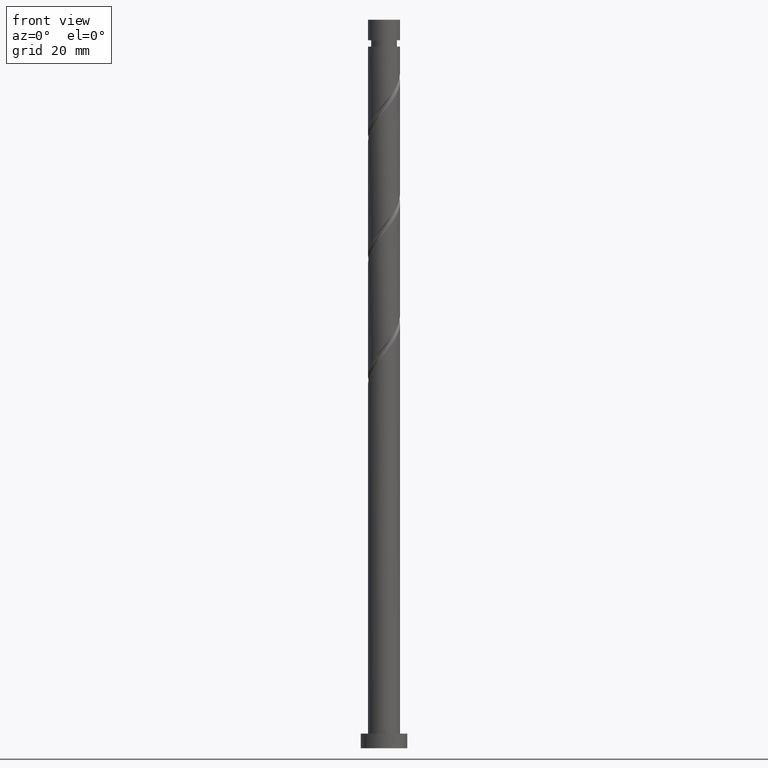
[diagram: clean part render]
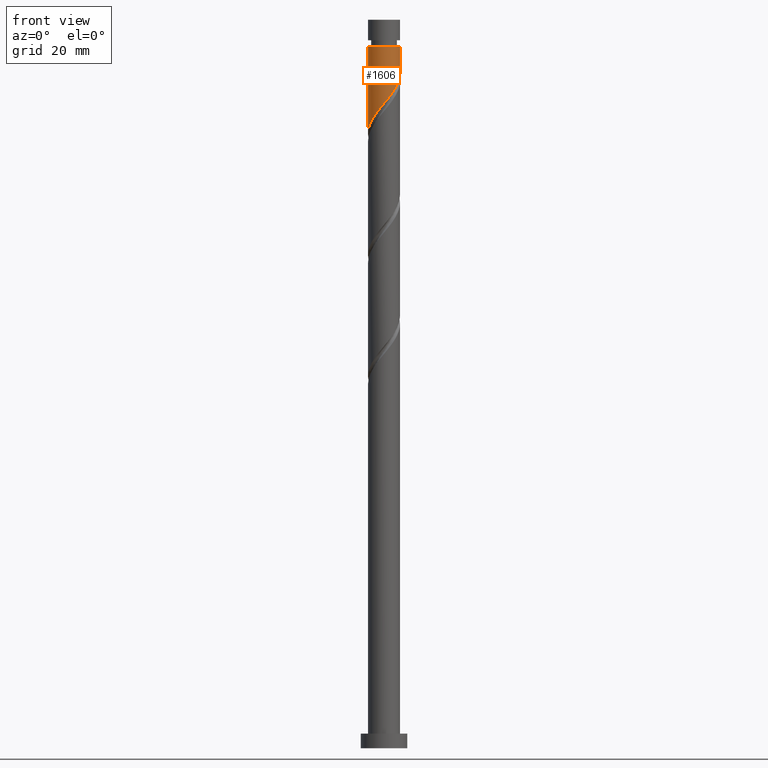
[diagram: same view with one face highlighted and labeled with its STEP entity id]
A machine part, front view. The second image highlights one B-rep face of the part: STEP entity #1606.
In plain terms, the highlighted cylindrical surface (edge-blend (fillet) strip) has radius 5.5 mm, axis along (-0, -0, -1).
Its self-contained STEP definition (entity closure, byte-faithful):
#1 = DIRECTION ( 'NONE',  ( -0.000000000000000000, -0.000000000000000000, -1.000000000000000000 ) ) ;
#22 = CARTESIAN_POINT ( 'NONE',  ( -5.499999999999982236, 0.000000000000000000, 240.7912338368553833 ) ) ;
#55 = CARTESIAN_POINT ( 'NONE',  ( -5.057622052273526236, -2.161124516624736369, 213.5476440932656885 ) ) ;
#124 = EDGE_CURVE ( 'NONE', #1712, #460, #824, .T. ) ;
#136 = CYLINDRICAL_SURFACE ( 'NONE', #626, 5.500000000000000000 ) ;
#142 = CARTESIAN_POINT ( 'NONE',  ( 2.754996457851407676, -4.760251518273607374, 224.7655928112143044 ) ) ;
#249 = LINE ( 'NONE', #834, #1811 ) ;
#261 = CARTESIAN_POINT ( 'NONE',  ( 5.482626562209551579, -0.4368134376988178080, 231.1758492214707417 ) ) ;
#271 = CARTESIAN_POINT ( 'NONE',  ( 5.499999999999999112, -0.2187522168522324229, 231.4383181304477262 ) ) ;
#274 = CARTESIAN_POINT ( 'NONE',  ( 5.500000000000000000, 6.735557395310442023E-16, 250.0000000000000000 ) ) ;
#312 = EDGE_CURVE ( 'NONE', #1154, #1231, #1296, .T. ) ;
#341 = CARTESIAN_POINT ( 'NONE',  ( -4.795214027474704821, -2.775231016600427481, 214.3489261445477041 ) ) ;
#350 = CARTESIAN_POINT ( 'NONE',  ( -5.499999999999998224, -0.4469104119537541386, 211.4088564500955840 ) ) ;
#367 = DIRECTION ( 'NONE',  ( -0.000000000000000000, -0.000000000000000000, -1.000000000000000000 ) ) ;
#433 = CARTESIAN_POINT ( 'NONE',  ( -4.393465797984362986, -3.308694347010860071, 215.1502081958297197 ) ) ;
#451 = ORIENTED_EDGE ( 'NONE', *, *, #646, .F. ) ;
#460 = VERTEX_POINT ( 'NONE', #22 ) ;
#473 = VECTOR ( 'NONE', #1392, 1000.000000000000000 ) ;
#531 = DIRECTION ( 'NONE',  ( -0.000000000000000000, -0.000000000000000000, -1.000000000000000000 ) ) ;
#561 = DIRECTION ( 'NONE',  ( -1.000000000000000000, 0.000000000000000000, 0.000000000000000000 ) ) ;
#569 = CARTESIAN_POINT ( 'NONE',  ( 5.500000000000000000, -2.004095763460430598E-15, 231.7024890460806148 ) ) ;
#622 = CARTESIAN_POINT ( 'NONE',  ( -2.956236993735469998, -4.685792099705351710, 217.5540543496759085 ) ) ;
#626 = AXIS2_PLACEMENT_3D ( 'NONE', #705, #1, #561 ) ;
#632 = CARTESIAN_POINT ( 'NONE',  ( -3.473977281114745352, -4.263974888563321741, 216.7527722983938361 ) ) ;
#644 = EDGE_CURVE ( 'NONE', #460, #1231, #249, .T. ) ;
#646 = EDGE_CURVE ( 'NONE', #1712, #1154, #1553, .T. ) ;
#691 = ORIENTED_EDGE ( 'NONE', *, *, #644, .T. ) ;
#705 = CARTESIAN_POINT ( 'NONE',  ( 0.000000000000000000, 0.000000000000000000, 250.0000000000000000 ) ) ;
#725 = CARTESIAN_POINT ( 'NONE',  ( 5.218775100567468073, -1.736198850851198960, 229.5732851189066537 ) ) ;
#734 = CARTESIAN_POINT ( 'NONE',  ( -5.427847696592713156, -0.8879579847003793436, 211.9450799907015153 ) ) ;
#769 = CARTESIAN_POINT ( 'NONE',  ( -1.094486180817284771, -5.389999999999998792, 219.9579005035220121 ) ) ;
#785 = CARTESIAN_POINT ( 'NONE',  ( -1.748950670385270412, -5.257105317315805770, 219.1566184522399965 ) ) ;
#824 = CIRCLE ( 'NONE', #936, 5.499999999999982236 ) ;
#830 = CARTESIAN_POINT ( 'NONE',  ( 5.429587808306028940, -1.102524828149343383, 230.3745671701887829 ) ) ;
#834 = CARTESIAN_POINT ( 'NONE',  ( -5.500000000000000000, 0.000000000000000000, 250.0000000000000000 ) ) ;
#851 = CARTESIAN_POINT ( 'NONE',  ( 4.651627399556055309, -2.934682697618154812, 227.9707210163425941 ) ) ;
#881 = ORIENTED_EDGE ( 'NONE', *, *, #124, .T. ) ;
#936 = AXIS2_PLACEMENT_3D ( 'NONE', #1670, #367, #1514 ) ;
#994 = CARTESIAN_POINT ( 'NONE',  ( -5.500000000000000000, -2.692068935991623080E-16, 210.8691557127472720 ) ) ;
#1057 = CARTESIAN_POINT ( 'NONE',  ( 0.8944797491683053048, -5.467713484000326751, 222.3617466573682009 ) ) ;
#1104 = CARTESIAN_POINT ( 'NONE',  ( 2.176997277865849068, -5.094768651956227856, 223.9643107599323173 ) ) ;
#1133 = EDGE_LOOP ( 'NONE', ( #451, #881, #691, #1511 ) ) ;
#1154 = VERTEX_POINT ( 'NONE', #569 ) ;
#1203 = CARTESIAN_POINT ( 'NONE',  ( -5.320030077072353869, -1.547018016649046368, 212.7463620419836161 ) ) ;
#1231 = VERTEX_POINT ( 'NONE', #994 ) ;
#1276 = FACE_OUTER_BOUND ( 'NONE', #1133, .T. ) ;
#1296 =( BOUNDED_CURVE ( )  B_SPLINE_CURVE ( 2, ( #1567, #271, #261, #830, #725, #1806, #851, #1398, #1703, #1407, #142, #1104, #1677, #1057, #1473, #1636, #769, #785, #1503, #622, #632, #1619, #433, #341, #55, #1203, #734, #350, #1495 ),
 .UNSPECIFIED., .F., .T. ) 
 B_SPLINE_CURVE_WITH_KNOTS ( ( 3, 2, 2, 2, 2, 2, 2, 2, 2, 2, 2, 2, 2, 2, 3 ),
 ( 0.3045271625973833274, 0.3076923076923077094, 0.3173076923076922906, 0.3269230769230769273, 0.3365384615384615641, 0.3461538461538461453, 0.3557692307692307820, 0.3653846153846153633, 0.3750000000000000000, 0.3846153846153846367, 0.3942307692307692180, 0.4038461538461538547, 0.4134615384615384359, 0.4230769230769230727, 0.4295271625973832164 ),
 .UNSPECIFIED. ) 
 CURVE ( )  GEOMETRIC_REPRESENTATION_ITEM ( )  RATIONAL_B_SPLINE_CURVE ( ( 0.9061636035682765211, 0.9069090390690650594, 0.9090909090909216062, 0.9024626128164251471, 0.9090909090909216062, 0.9024626128164251471, 0.9090909090909216062, 0.9024626128164251471, 0.9090909090909216062, 0.9024626128164251471, 0.9090909090909216062, 0.9024626128164251471, 0.9090909090909216062, 0.9024626128164251471, 0.9090909090909216062, 0.9024626128164251471, 0.9090909090909216062, 0.9024626128164251471, 0.9090909090909216062, 0.9024626128164251471, 0.9090909090909216062, 0.9024626128164251471, 0.9090909090909216062, 0.9024626128164251471, 0.9090909090909216062, 0.9024626128164251471, 0.9090909090909216062, 0.9046444828382818049, 0.9061636035682764101 ) ) 
 REPRESENTATION_ITEM ( '' )  );
#1392 = DIRECTION ( 'NONE',  ( -0.000000000000000000, -0.000000000000000000, -1.000000000000000000 ) ) ;
#1398 = CARTESIAN_POINT ( 'NONE',  ( 4.295292406283203412, -3.499492521683257529, 227.1694389650604364 ) ) ;
#1407 = CARTESIAN_POINT ( 'NONE',  ( 3.332995637836965397, -4.425734384590987780, 225.5668748624964337 ) ) ;
#1473 = CARTESIAN_POINT ( 'NONE',  ( 0.2272290289595019219, -5.495304083342259283, 221.5604646060861285 ) ) ;
#1495 = CARTESIAN_POINT ( 'NONE',  ( -5.500000000000000000, -2.692068935991622587E-16, 210.8691557127472720 ) ) ;
#1503 = CARTESIAN_POINT ( 'NONE',  ( -2.352593832060370538, -4.971448708510576964, 218.3553364009579809 ) ) ;
#1511 = ORIENTED_EDGE ( 'NONE', *, *, #312, .F. ) ;
#1514 = DIRECTION ( 'NONE',  ( -1.000000000000000000, 0.000000000000000000, 0.000000000000000000 ) ) ;
#1553 = LINE ( 'NONE', #274, #473 ) ;
#1567 = CARTESIAN_POINT ( 'NONE',  ( 5.499999999999999112, -2.004095763460430203E-15, 231.7024890460806148 ) ) ;
#1606 = ADVANCED_FACE ( 'NONE', ( #1276 ), #136, .T. ) ;
#1619 = CARTESIAN_POINT ( 'NONE',  ( -3.991717568494021595, -3.842157677421293549, 215.9514902471117921 ) ) ;
#1636 = CARTESIAN_POINT ( 'NONE',  ( -0.4400216912493009613, -5.522894682684190926, 220.7591825548040845 ) ) ;
#1670 = CARTESIAN_POINT ( 'NONE',  ( 0.000000000000000000, 0.000000000000000000, 240.7912338368553833 ) ) ;
#1677 = CARTESIAN_POINT ( 'NONE',  ( 1.535738513517078685, -5.281241067978278636, 223.1630287086502733 ) ) ;
#1703 = CARTESIAN_POINT ( 'NONE',  ( 3.814144022060085959, -3.962613453137121766, 226.3681569137784493 ) ) ;
#1712 = VERTEX_POINT ( 'NONE', #1757 ) ;
#1757 = CARTESIAN_POINT ( 'NONE',  ( 5.499999999999982236, 6.735557395310431176E-16, 240.7912338368553833 ) ) ;
#1806 = CARTESIAN_POINT ( 'NONE',  ( 5.007962392828906317, -2.369872873553050763, 228.7720030676245813 ) ) ;
#1811 = VECTOR ( 'NONE', #531, 1000.000000000000000 ) ;